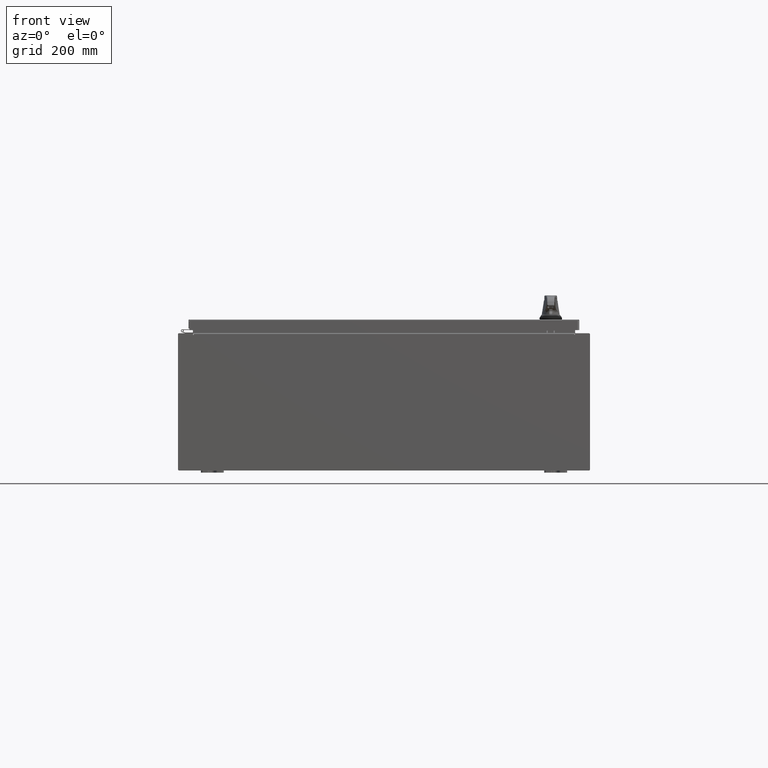
[diagram: clean part render]
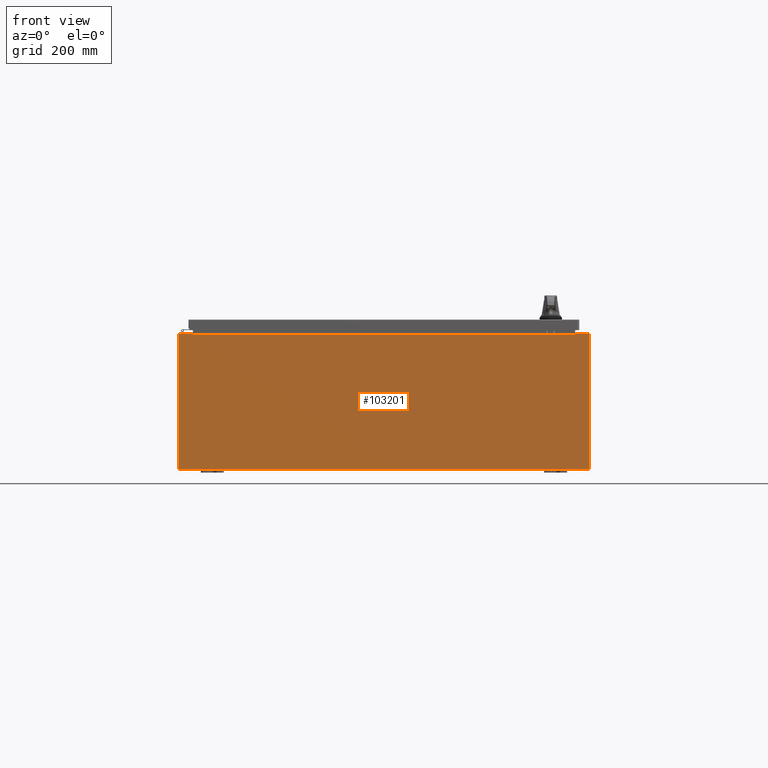
[diagram: same view with one face highlighted and labeled with its STEP entity id]
A machine part, front view. The second image highlights one B-rep face of the part: STEP entity #103201.
In plain terms, the highlighted planar face has unit normal (-0, 1, -0).
Its self-contained STEP definition (entity closure, byte-faithful):
#3618 = DIRECTION ( 'NONE',  ( 0.0000000000000000000, -1.000000000000000000, 0.0000000000000000000 ) ) ;
#4206 = EDGE_CURVE ( 'NONE', #112118, #10500, #121630, .T. ) ;
#4753 = ORIENTED_EDGE ( 'NONE', *, *, #98726, .F. ) ;
#6226 = LINE ( 'NONE', #100380, #30614 ) ;
#10500 = VERTEX_POINT ( 'NONE', #75007 ) ;
#12438 = DIRECTION ( 'NONE',  ( 1.000000000000000000, 0.0000000000000000000, 3.048036009064577000E-017 ) ) ;
#12786 = VERTEX_POINT ( 'NONE', #16671 ) ;
#12823 = ORIENTED_EDGE ( 'NONE', *, *, #4206, .F. ) ;
#16340 = EDGE_LOOP ( 'NONE', ( #78814, #12823, #41142, #40469, #86197, #90257, #4753, #95448, #50624, #34474, #77954, #66042 ) ) ;
#16671 = CARTESIAN_POINT ( 'NONE',  ( -16.63720000000000000, 3.756290991288361700E-016, 5.912299999999999200 ) ) ;
#18489 = AXIS2_PLACEMENT_3D ( 'NONE', #104454, #42336, #114854 ) ;
#18709 = VERTEX_POINT ( 'NONE', #41075 ) ;
#19437 = CARTESIAN_POINT ( 'NONE',  ( 17.92530000000000400, 0.0000000000000000000, 5.925300000000000000 ) ) ;
#19476 = VECTOR ( 'NONE', #103175, 39.37007874015748100 ) ;
#20208 = CARTESIAN_POINT ( 'NONE',  ( 16.67454999999949500, -0.0000000000000000000, -1.447541957108302900E-012 ) ) ;
#21430 = CARTESIAN_POINT ( 'NONE',  ( -16.67455000000000000, 0.0000000000000000000, 5.925299999999999100 ) ) ;
#23534 = DIRECTION ( 'NONE',  ( 0.0000000000000000000, 0.0000000000000000000, 1.000000000000000000 ) ) ;
#23899 = CARTESIAN_POINT ( 'NONE',  ( -17.92529999999999600, 0.0000000000000000000, -5.925300000000000000 ) ) ;
#24486 = DIRECTION ( 'NONE',  ( -0.0000000000000000000, -0.0000000000000000000, 1.000000000000000000 ) ) ;
#25308 = EDGE_CURVE ( 'NONE', #12786, #112118, #86534, .T. ) ;
#26020 = EDGE_CURVE ( 'NONE', #18709, #30907, #89628, .T. ) ;
#29326 = CARTESIAN_POINT ( 'NONE',  ( 16.63720000000000400, 0.0000000000000000000, 5.874949999999999200 ) ) ;
#30194 = DIRECTION ( 'NONE',  ( 1.000000000000000000, 0.0000000000000000000, 3.048036009064577000E-017 ) ) ;
#30614 = VECTOR ( 'NONE', #131615, 39.37007874015748100 ) ;
#30907 = VERTEX_POINT ( 'NONE', #21430 ) ;
#31353 = CARTESIAN_POINT ( 'NONE',  ( 17.92530000000000400, 0.0000000000000000000, 5.925300000000000000 ) ) ;
#33720 = VERTEX_POINT ( 'NONE', #82017 ) ;
#34474 = ORIENTED_EDGE ( 'NONE', *, *, #70031, .T. ) ;
#34610 = VECTOR ( 'NONE', #68596, 39.37007874015748100 ) ;
#36402 = CARTESIAN_POINT ( 'NONE',  ( -16.63720000000000000, -0.0000000000000000000, 0.0000000000000000000 ) ) ;
#38837 = VERTEX_POINT ( 'NONE', #100055 ) ;
#39958 = LINE ( 'NONE', #85667, #119396 ) ;
#40469 = ORIENTED_EDGE ( 'NONE', *, *, #61320, .T. ) ;
#40638 = CARTESIAN_POINT ( 'NONE',  ( 16.63720000000000400, 0.0000000000000000000, 5.912299999999999200 ) ) ;
#41075 = CARTESIAN_POINT ( 'NONE',  ( -17.92529999999999600, 0.0000000000000000000, 5.925299999999999100 ) ) ;
#41142 = ORIENTED_EDGE ( 'NONE', *, *, #25308, .F. ) ;
#41614 = DIRECTION ( 'NONE',  ( -0.0000000000000000000, 1.000000000000000000, -0.0000000000000000000 ) ) ;
#42065 = CARTESIAN_POINT ( 'NONE',  ( -16.63720000000000000, -0.0000000000000000000, 5.874949999999999200 ) ) ;
#42336 = DIRECTION ( 'NONE',  ( -0.0000000000000000000, 1.000000000000000000, -0.0000000000000000000 ) ) ;
#43931 = CARTESIAN_POINT ( 'NONE',  ( 16.67455000000000400, 0.0000000000000000000, 5.874949999999999200 ) ) ;
#47064 = LINE ( 'NONE', #20208, #19476 ) ;
#48064 = CARTESIAN_POINT ( 'NONE',  ( -16.63720000000000000, 3.756290991288361700E-016, 5.912299999999999200 ) ) ;
#49947 = EDGE_CURVE ( 'NONE', #126823, #100232, #39958, .T. ) ;
#50624 = ORIENTED_EDGE ( 'NONE', *, *, #107258, .T. ) ;
#59805 = DIRECTION ( 'NONE',  ( 0.0000000000000000000, 0.0000000000000000000, -1.000000000000000000 ) ) ;
#61320 = EDGE_CURVE ( 'NONE', #12786, #100232, #77719, .T. ) ;
#62529 = AXIS2_PLACEMENT_3D ( 'NONE', #103737, #41614, #114127 ) ;
#63867 = LINE ( 'NONE', #107012, #88195 ) ;
#65806 = CARTESIAN_POINT ( 'NONE',  ( 0.0000000000000000000, 0.0000000000000000000, 0.0000000000000000000 ) ) ;
#66042 = ORIENTED_EDGE ( 'NONE', *, *, #26020, .T. ) ;
#68596 = DIRECTION ( 'NONE',  ( 0.0000000000000000000, 0.0000000000000000000, -1.000000000000000000 ) ) ;
#70031 = EDGE_CURVE ( 'NONE', #38837, #107608, #6226, .T. ) ;
#71228 = VECTOR ( 'NONE', #89806, 39.37007874015748100 ) ;
#71286 = DIRECTION ( 'NONE',  ( 0.0000000000000000000, 0.0000000000000000000, 1.000000000000000000 ) ) ;
#74601 = CARTESIAN_POINT ( 'NONE',  ( -17.92529999999999600, 0.0000000000000000000, 5.925299999999999100 ) ) ;
#75007 = CARTESIAN_POINT ( 'NONE',  ( -16.67455000000000000, 0.0000000000000000000, 5.874949999999999200 ) ) ;
#75094 = LINE ( 'NONE', #19437, #102667 ) ;
#76221 = DIRECTION ( 'NONE',  ( 0.0000000000000000000, -0.0000000000000000000, -1.000000000000000000 ) ) ;
#77686 = EDGE_CURVE ( 'NONE', #107608, #18709, #63867, .T. ) ;
#77719 = LINE ( 'NONE', #48064, #71228 ) ;
#77954 = ORIENTED_EDGE ( 'NONE', *, *, #77686, .T. ) ;
#78814 = ORIENTED_EDGE ( 'NONE', *, *, #111615, .F. ) ;
#81926 = CARTESIAN_POINT ( 'NONE',  ( -17.92529999999999600, 0.0000000000000000000, 5.925299999999999100 ) ) ;
#82017 = CARTESIAN_POINT ( 'NONE',  ( 16.67455000000000700, 0.0000000000000000000, 5.925300000000000000 ) ) ;
#85667 = CARTESIAN_POINT ( 'NONE',  ( 16.63720000000000400, 0.0000000000000000000, 0.0000000000000000000 ) ) ;
#86197 = ORIENTED_EDGE ( 'NONE', *, *, #49947, .F. ) ;
#86534 = LINE ( 'NONE', #36402, #34610 ) ;
#88195 = VECTOR ( 'NONE', #24486, 39.37007874015748100 ) ;
#89628 = LINE ( 'NONE', #81926, #120423 ) ;
#89806 = DIRECTION ( 'NONE',  ( 1.000000000000000000, 0.0000000000000000000, 0.0000000000000000000 ) ) ;
#90123 = VERTEX_POINT ( 'NONE', #43931 ) ;
#90257 = ORIENTED_EDGE ( 'NONE', *, *, #117721, .F. ) ;
#95228 = FACE_OUTER_BOUND ( 'NONE', #16340, .T. ) ;
#95448 = ORIENTED_EDGE ( 'NONE', *, *, #127311, .T. ) ;
#98726 = EDGE_CURVE ( 'NONE', #33720, #90123, #47064, .T. ) ;
#100055 = CARTESIAN_POINT ( 'NONE',  ( 17.92530000000000400, 0.0000000000000000000, -5.925300000000000000 ) ) ;
#100232 = VERTEX_POINT ( 'NONE', #40638 ) ;
#100380 = CARTESIAN_POINT ( 'NONE',  ( -17.92529999999999600, 0.0000000000000000000, -5.925300000000000000 ) ) ;
#102667 = VECTOR ( 'NONE', #59805, 39.37007874015748100 ) ;
#103175 = DIRECTION ( 'NONE',  ( -8.681145560799821800E-014, 0.0000000000000000000, -1.000000000000000000 ) ) ;
#103201 = ADVANCED_FACE ( 'NONE', ( #95228 ), #127869, .F. ) ;
#103340 = CIRCLE ( 'NONE', #18489, 0.01867499999999949400 ) ;
#103737 = CARTESIAN_POINT ( 'NONE',  ( -16.65587499999999800, 0.0000000000000000000, 5.874949999999999200 ) ) ;
#104287 = LINE ( 'NONE', #74601, #128566 ) ;
#104454 = CARTESIAN_POINT ( 'NONE',  ( 16.65587500000000500, 0.0000000000000000000, 5.874949999999999200 ) ) ;
#105933 = VECTOR ( 'NONE', #71286, 39.37007874015748100 ) ;
#107012 = CARTESIAN_POINT ( 'NONE',  ( -17.92529999999999600, 0.0000000000000000000, 5.925299999999999100 ) ) ;
#107258 = EDGE_CURVE ( 'NONE', #133224, #38837, #75094, .T. ) ;
#107608 = VERTEX_POINT ( 'NONE', #23899 ) ;
#109161 = LINE ( 'NONE', #112509, #105933 ) ;
#111615 = EDGE_CURVE ( 'NONE', #10500, #30907, #109161, .T. ) ;
#112118 = VERTEX_POINT ( 'NONE', #42065 ) ;
#112509 = CARTESIAN_POINT ( 'NONE',  ( -16.67455000000000000, -0.0000000000000000000, 0.0000000000000000000 ) ) ;
#114127 = DIRECTION ( 'NONE',  ( 0.0000000000000000000, 0.0000000000000000000, -1.000000000000000000 ) ) ;
#114854 = DIRECTION ( 'NONE',  ( 0.0000000000000000000, 0.0000000000000000000, -1.000000000000000000 ) ) ;
#117721 = EDGE_CURVE ( 'NONE', #90123, #126823, #103340, .T. ) ;
#119396 = VECTOR ( 'NONE', #23534, 39.37007874015748100 ) ;
#120423 = VECTOR ( 'NONE', #30194, 39.37007874015748100 ) ;
#121630 = CIRCLE ( 'NONE', #62529, 0.01867499999999949400 ) ;
#126823 = VERTEX_POINT ( 'NONE', #29326 ) ;
#127311 = EDGE_CURVE ( 'NONE', #33720, #133224, #104287, .T. ) ;
#127869 = PLANE ( 'NONE',  #133024 ) ;
#128566 = VECTOR ( 'NONE', #12438, 39.37007874015748100 ) ;
#131615 = DIRECTION ( 'NONE',  ( -1.000000000000000000, -0.0000000000000000000, -0.0000000000000000000 ) ) ;
#133024 = AXIS2_PLACEMENT_3D ( 'NONE', #65806, #3618, #76221 ) ;
#133224 = VERTEX_POINT ( 'NONE', #31353 ) ;